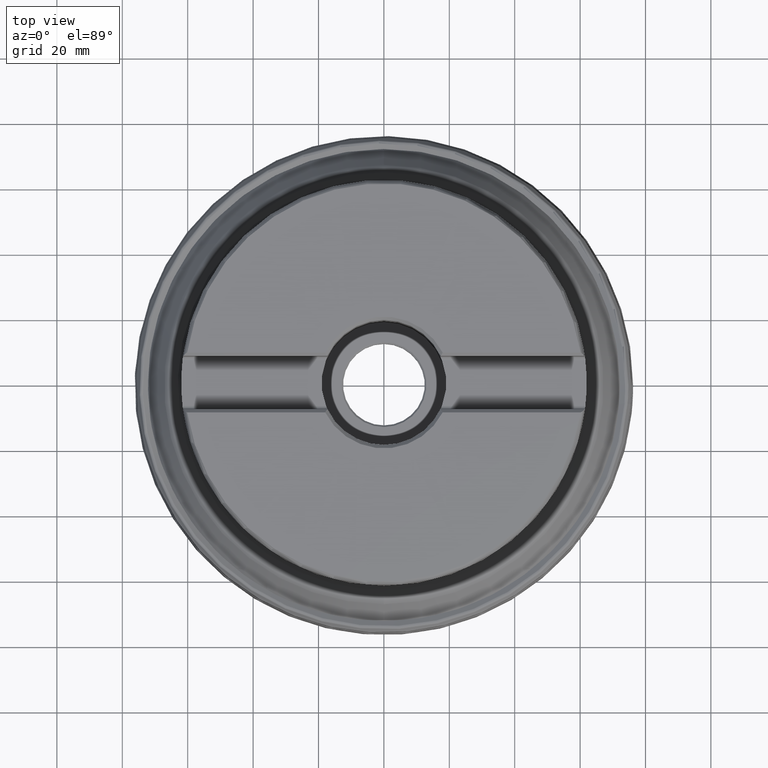
[diagram: clean part render]
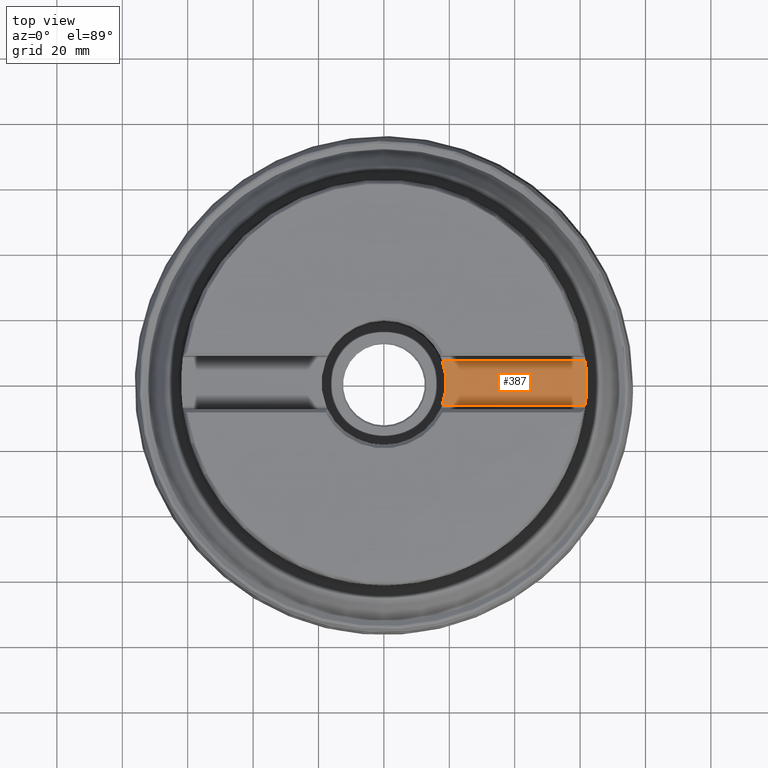
[diagram: same view with one face highlighted and labeled with its STEP entity id]
A machine part, top view. The second image highlights one B-rep face of the part: STEP entity #387.
In plain terms, the highlighted planar face has unit normal (0, 0, 1).
Its self-contained STEP definition (entity closure, byte-faithful):
#177=PLANE('',#1260);
#211=LINE('',#2241,#238);
#212=LINE('',#2242,#239);
#238=VECTOR('',#1470,1.);
#239=VECTOR('',#1471,1.);
#387=ADVANCED_FACE('',(#457),#177,.T.);
#457=FACE_OUTER_BOUND('',#523,.T.);
#523=EDGE_LOOP('',(#709,#710,#711,#712));
#709=ORIENTED_EDGE('',*,*,#1018,.T.);
#710=ORIENTED_EDGE('',*,*,#1000,.F.);
#711=ORIENTED_EDGE('',*,*,#1019,.T.);
#712=ORIENTED_EDGE('',*,*,#958,.F.);
#853=VERTEX_POINT('',#1952);
#859=VERTEX_POINT('',#2011);
#895=VERTEX_POINT('',#2166);
#896=VERTEX_POINT('',#2168);
#958=EDGE_CURVE('',#859,#853,#1061,.T.);
#1000=EDGE_CURVE('',#895,#896,#1085,.T.);
#1018=EDGE_CURVE('',#859,#896,#211,.T.);
#1019=EDGE_CURVE('',#895,#853,#212,.T.);
#1061=CIRCLE('',#1194,62.);
#1085=CIRCLE('',#1232,19.05);
#1194=AXIS2_PLACEMENT_3D('',#2012,#1326,#1327);
#1232=AXIS2_PLACEMENT_3D('',#2167,#1413,#1414);
#1260=AXIS2_PLACEMENT_3D('',#2243,#1472,#1473);
#1326=DIRECTION('',(-1.17145536458252E-15,-7.45233380313038E-16,-1.));
#1327=DIRECTION('',(-1.,1.39163970175078E-30,1.11917643611407E-15));
#1413=DIRECTION('',(1.17145536458252E-15,7.45233380313038E-16,1.));
#1414=DIRECTION('',(6.47031582366316E-31,1.,-7.2849279831047E-16));
#1470=DIRECTION('',(-1.,1.37230767120917E-30,1.17145536458252E-15));
#1471=DIRECTION('',(1.,-1.37230767120917E-30,-1.17145536458252E-15));
#1472=DIRECTION('',(1.17145536458252E-15,7.45233380313038E-16,1.));
#1473=DIRECTION('',(0.,1.,-7.42461647718073E-16));
#1952=CARTESIAN_POINT('',(61.6103595185095,-6.93999999999994,50.7949999999999));
#2011=CARTESIAN_POINT('',(61.6103595185095,6.94000000000006,50.7949999999999));
#2012=CARTESIAN_POINT('',(0.,5.95040752439693E-14,50.795));
#2166=CARTESIAN_POINT('',(17.7408821652138,-6.93999999999994,50.795));
#2167=CARTESIAN_POINT('',(5.95040752439693E-14,5.95040752439693E-14,50.795));
#2168=CARTESIAN_POINT('',(17.7408821652138,6.94000000000006,50.795));
#2241=CARTESIAN_POINT('',(67.0000000000001,6.94000000000006,50.7949999999999));
#2242=CARTESIAN_POINT('',(67.0000000000001,-6.93999999999994,50.7949999999999));
#2243=CARTESIAN_POINT('',(67.0000000000001,-8.13999999999994,50.7949999999999));